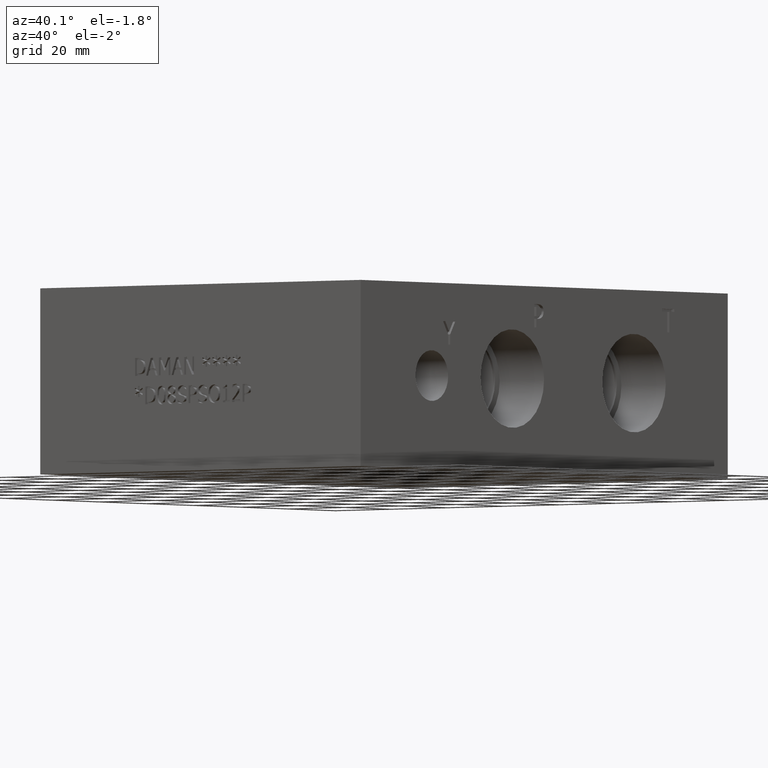
[diagram: clean part render]
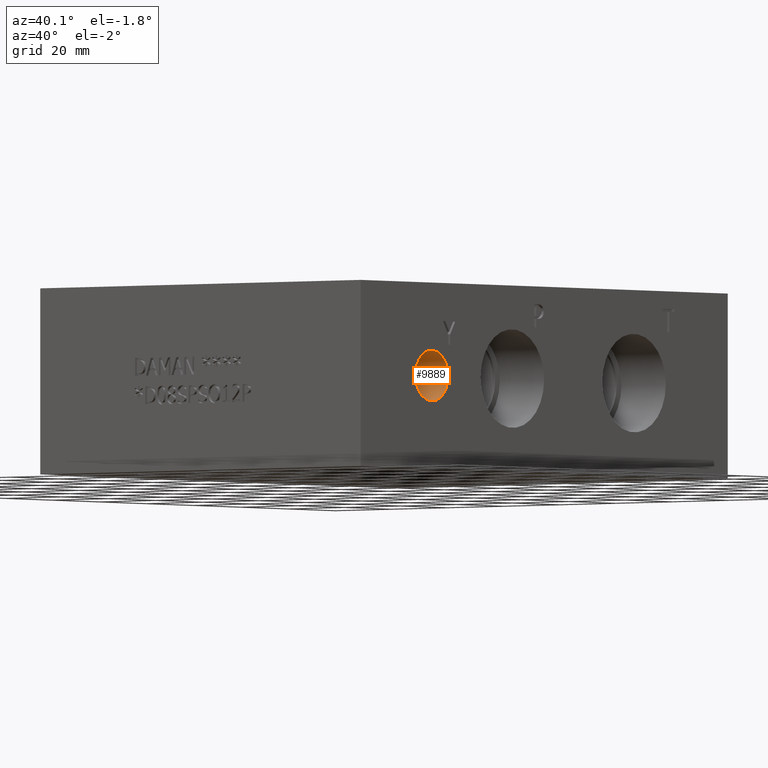
[diagram: same view with one face highlighted and labeled with its STEP entity id]
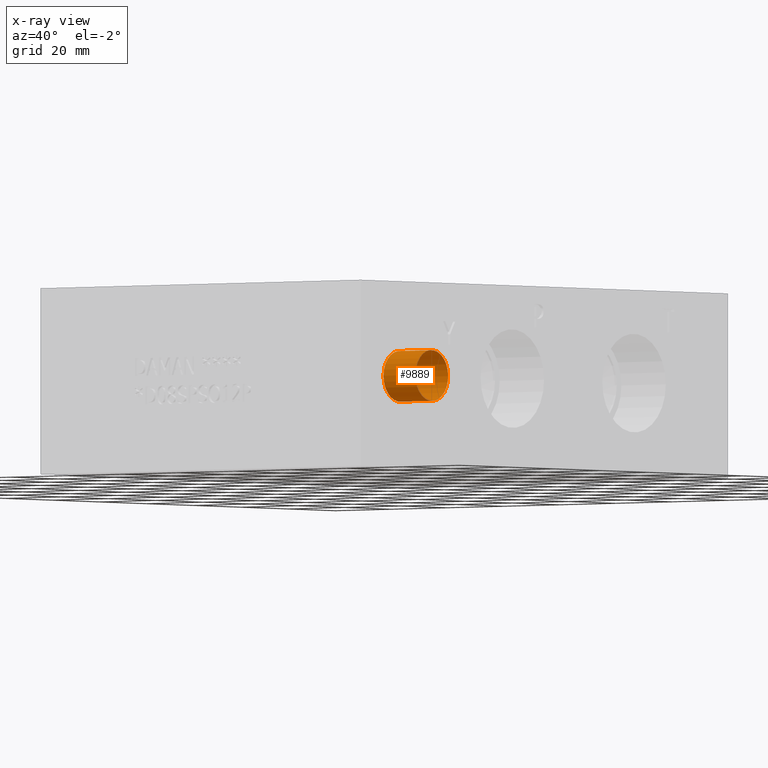
[diagram: x-ray of the same camera — body ghosted, the highlighted face saturated]
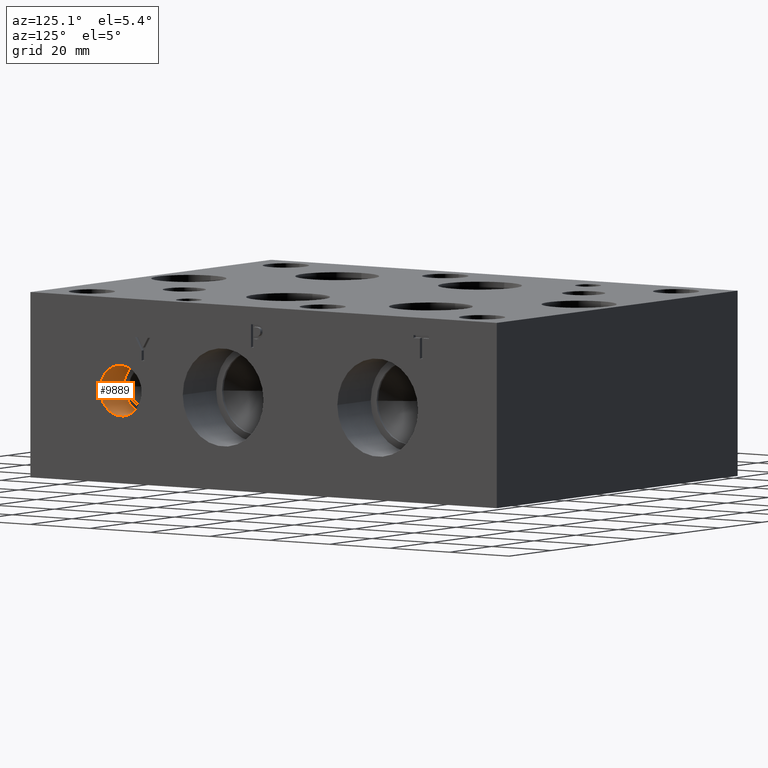
[diagram: same view with one face highlighted and labeled with its STEP entity id]
A machine part, auxiliary view. The second image highlights one B-rep face of the part: STEP entity #9889.
The next image is the same camera in x-ray: the body ghosted, the highlighted face saturated — about 0% of this face is hidden behind the body in this view.
A second angle (auxiliary view) of the same face is appended — the face is thin or edge-on in the first view.
In plain terms, the highlighted cylindrical surface (bore or boss wall) has radius 6.9342 mm, axis along (1, 0, 0).
Its self-contained STEP definition (entity closure, byte-faithful):
#14=CYLINDRICAL_SURFACE('',#10283,6.9342);
#74=CIRCLE('',#10001,6.9342);
#75=CIRCLE('',#10002,6.9342);
#84=CIRCLE('',#10280,6.9342);
#85=CIRCLE('',#10281,6.9342);
#1137=FACE_OUTER_BOUND('',#1690,.T.);
#1690=EDGE_LOOP('',(#8359,#8360,#8361,#8362,#8363,#8364));
#2690=LINE('',#16701,#3642);
#3642=VECTOR('',#11979,6.9342);
#3757=VERTEX_POINT('',#12678);
#3758=VERTEX_POINT('',#12679);
#4502=VERTEX_POINT('',#16694);
#4503=VERTEX_POINT('',#16695);
#4718=EDGE_CURVE('',#3757,#3758,#74,.T.);
#4719=EDGE_CURVE('',#3758,#3757,#75,.T.);
#5830=EDGE_CURVE('',#4502,#4503,#84,.T.);
#5831=EDGE_CURVE('',#4503,#4502,#85,.T.);
#5833=EDGE_CURVE('',#3758,#4503,#2690,.T.);
#8359=ORIENTED_EDGE('',*,*,#4718,.F.);
#8360=ORIENTED_EDGE('',*,*,#4719,.F.);
#8361=ORIENTED_EDGE('',*,*,#5833,.T.);
#8362=ORIENTED_EDGE('',*,*,#5830,.F.);
#8363=ORIENTED_EDGE('',*,*,#5831,.F.);
#8364=ORIENTED_EDGE('',*,*,#5833,.F.);
#9889=ADVANCED_FACE('',(#1137),#14,.F.);
#10001=AXIS2_PLACEMENT_3D('',#12680,#10581,#10582);
#10002=AXIS2_PLACEMENT_3D('',#12681,#10583,#10584);
#10280=AXIS2_PLACEMENT_3D('',#16696,#11971,#11972);
#10281=AXIS2_PLACEMENT_3D('',#16697,#11973,#11974);
#10283=AXIS2_PLACEMENT_3D('',#16700,#11977,#11978);
#10581=DIRECTION('center_axis',(-1.,0.,0.));
#10582=DIRECTION('ref_axis',(0.,1.,0.));
#10583=DIRECTION('center_axis',(-1.,0.,0.));
#10584=DIRECTION('ref_axis',(0.,1.,0.));
#11971=DIRECTION('center_axis',(1.,0.,0.));
#11972=DIRECTION('ref_axis',(0.,1.,0.));
#11973=DIRECTION('center_axis',(1.,0.,0.));
#11974=DIRECTION('ref_axis',(0.,1.,0.));
#11977=DIRECTION('center_axis',(1.,0.,0.));
#11978=DIRECTION('ref_axis',(0.,1.,0.));
#11979=DIRECTION('',(-1.,0.,0.));
#12678=CARTESIAN_POINT('',(114.3,37.1094,25.4));
#12679=CARTESIAN_POINT('',(114.3,23.241,25.4));
#12680=CARTESIAN_POINT('Origin',(114.3,30.1752,25.4));
#12681=CARTESIAN_POINT('Origin',(114.3,30.1752,25.4));
#16694=CARTESIAN_POINT('',(102.8954,37.1094,25.4));
#16695=CARTESIAN_POINT('',(102.8954,23.241,25.4));
#16696=CARTESIAN_POINT('Origin',(102.8954,30.1752,25.4));
#16697=CARTESIAN_POINT('Origin',(102.8954,30.1752,25.4));
#16700=CARTESIAN_POINT('Origin',(108.5977,30.1752,25.4));
#16701=CARTESIAN_POINT('',(108.5977,23.241,25.4));